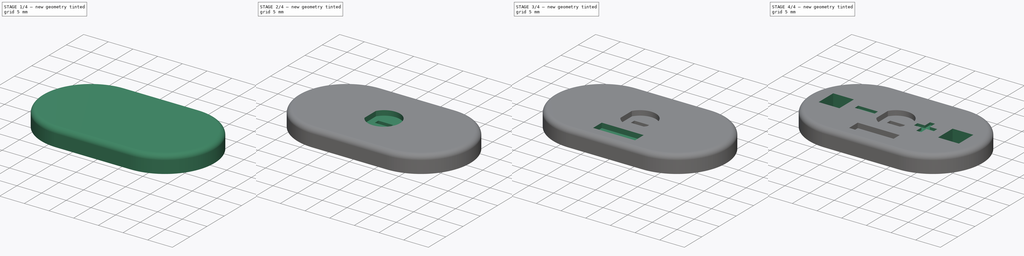
[diagram: build sequence overview — one tinted view per stage of 4, left to right]
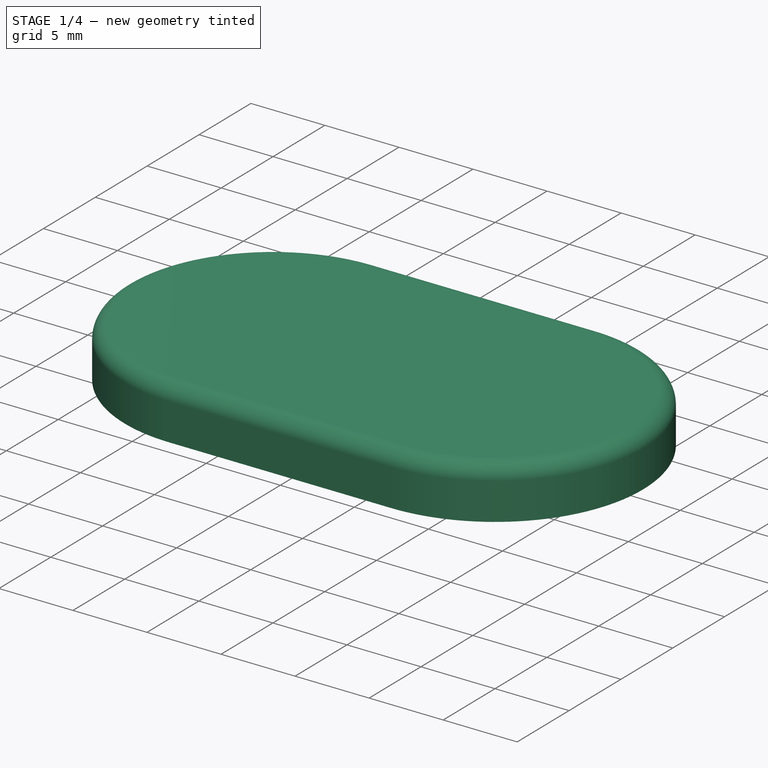
[diagram: stage 1 of 4 — iso view after this stage's code; geometry added in this stage tinted green]
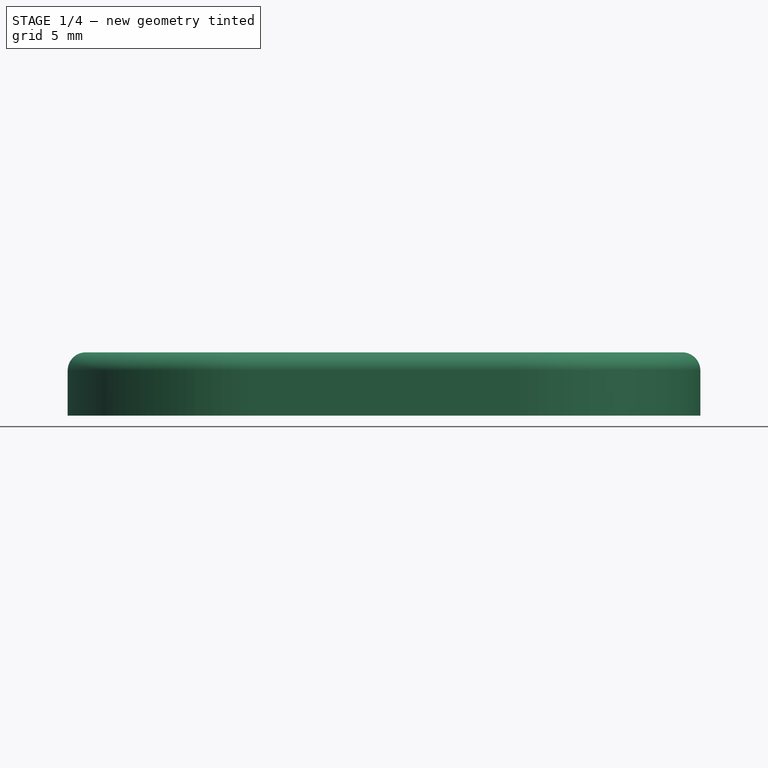
[diagram: stage 1 of 4 — front view after this stage's code; geometry added in this stage tinted green]
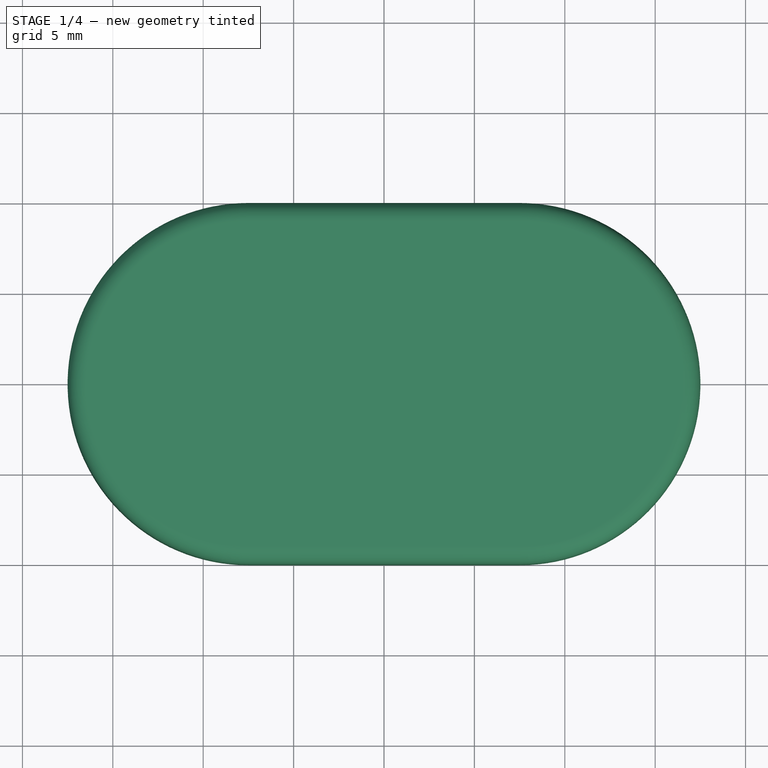
[diagram: stage 1 of 4 — top view after this stage's code; geometry added in this stage tinted green]
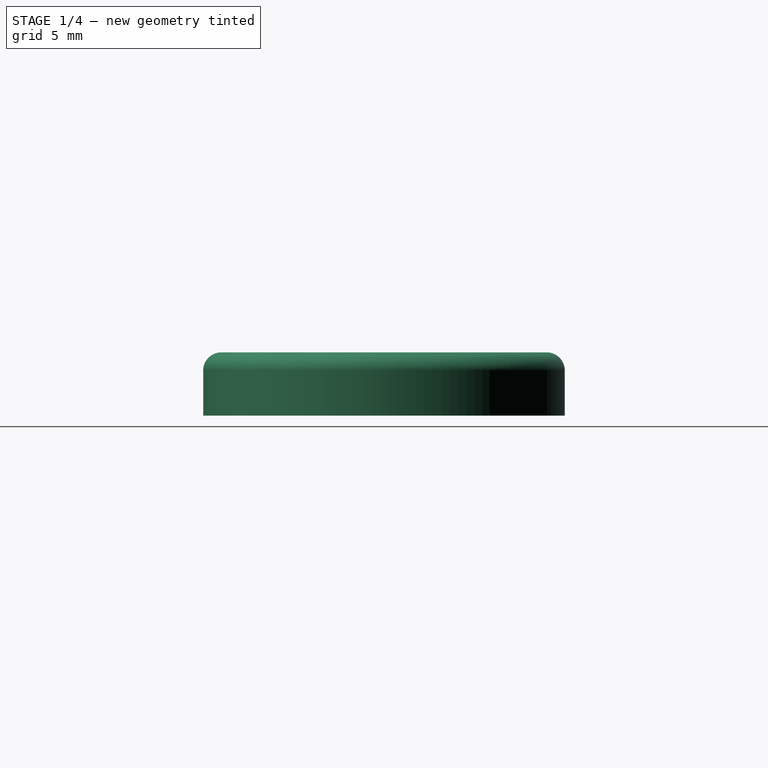
[diagram: stage 1 of 4 — right view after this stage's code; geometry added in this stage tinted green]
FCSTD DOCUMENT  (FreeCAD 0.15R4671 (Git))
Label: led-base-resistor
License: All rights reserved
LicenseURL: http://en.wikipedia.org/wiki/All_rights_reserved
objects: Sketcher::SketchObject×8, PartDesign::Pocket×7, PartDesign::Pad×1, PartDesign::Fillet×1
note: 25 computed .brp shape members not serialized (recipe doc carries the construction recipe); baked Part::Feature solids carry a one-line shape summary decoded from their .brp

FEATURE [Sketcher::SketchObject] Sketch  label="Base"
  sketch-geometry (4):
    g0: ArcOfCircle CenterX=-7.5 CenterY=-1e-12 CenterZ=0 NormalX=0 NormalY=0 NormalZ=1 Radius=10 StartAngle=1.5708 EndAngle=4.71239
    g1: ArcOfCircle CenterX=7.5 CenterY=-1e-12 CenterZ=0 NormalX=0 NormalY=0 NormalZ=1 Radius=10 StartAngle=4.71239 EndAngle=7.85398
    g2: LineSegment StartX=-7.5 StartY=-10 StartZ=0 EndX=7.5 EndY=-10 EndZ=0
    g3: LineSegment StartX=-7.5 StartY=10 StartZ=0 EndX=7.5 EndY=10 EndZ=0
  constraints (9):
    c: Tangent(g0,g3) = 1.5708
    c: Tangent(g0,g2) = -1.5708
    c: Tangent(g2,g1) = -1.5708
    c: Tangent(g3,g1) = 1.5708
    c: Horizontal(g2)
    c: Symmetric(g1,g0,g-2)
    c: DistanceX(g0,g1) = 15
    c: DistanceY(g0,g0) = 20
    c: Symmetric(g0,g0,g-1)
FEATURE [PartDesign::Pad] Pad
  Length = 3.5
  Length2 = 100
  Sketch = -> Sketch
  Type = 0
FEATURE [PartDesign::Fillet] Fillet
  Base = -> Pad [Edge12,Edge7,Edge10,Edge4]
  Radius = 1
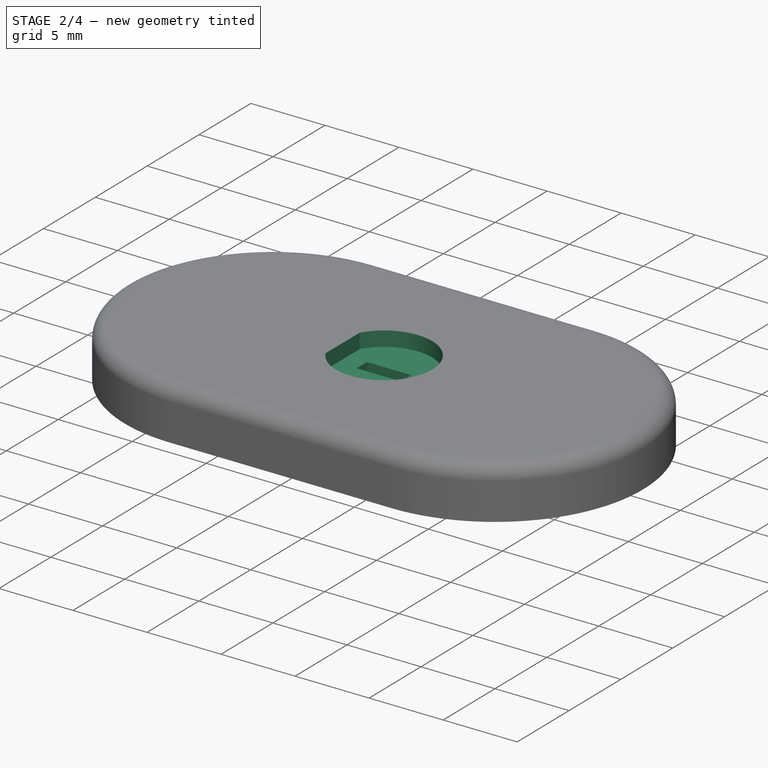
[diagram: stage 2 of 4 — iso view after this stage's code; geometry added in this stage tinted green]
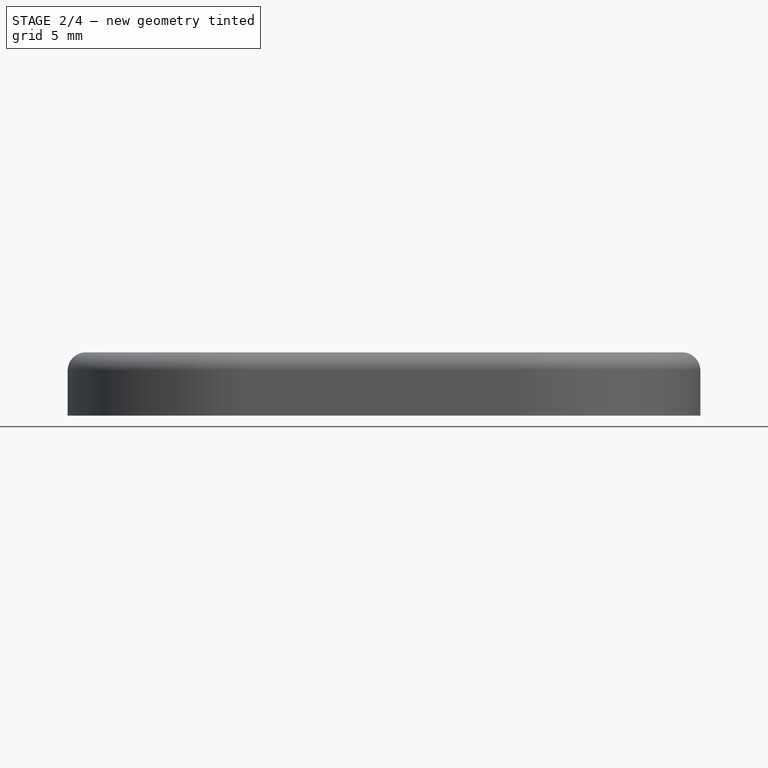
[diagram: stage 2 of 4 — front view after this stage's code; geometry added in this stage tinted green]
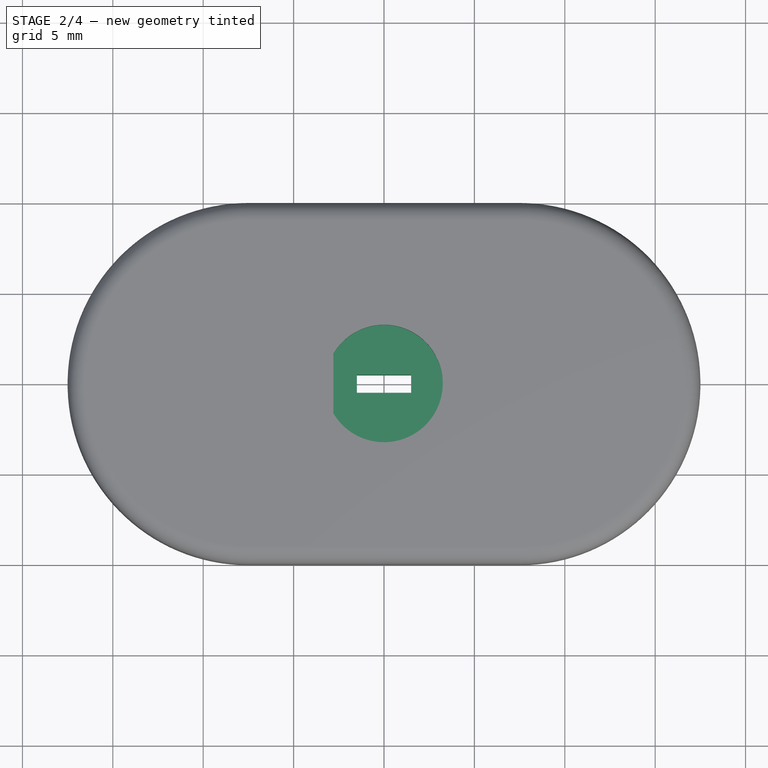
[diagram: stage 2 of 4 — top view after this stage's code; geometry added in this stage tinted green]
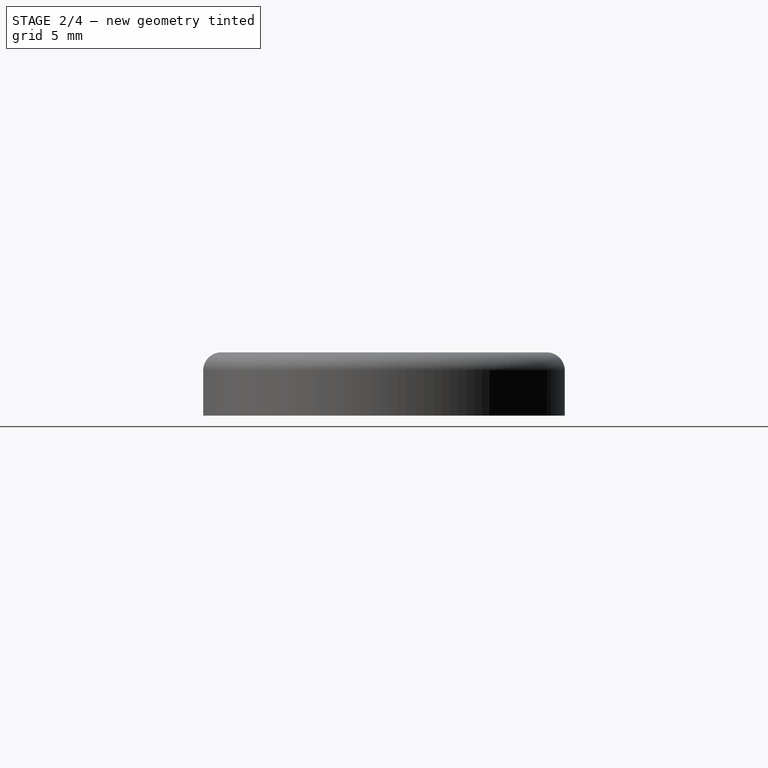
[diagram: stage 2 of 4 — right view after this stage's code; geometry added in this stage tinted green]
FEATURE [Sketcher::SketchObject] Sketch003  label="ledcutout"
  Placement = pos=(0,0,3.5) rot=(0,0,1;0rad)
  Support = -> Fillet [Face9]
  sketch-geometry (2):
    g0: ArcOfCircle CenterX=0 CenterY=0 CenterZ=0 NormalX=0 NormalY=0 NormalZ=1 Radius=3.25 StartAngle=3.6741 EndAngle=8.89227
    g1: LineSegment StartX=-2.8 StartY=1.65 StartZ=0 EndX=-2.8 EndY=-1.65 EndZ=0
  constraints (6):
    c: Coincident(g1,g0)
    c: Coincident(g1,g0)
    c: Radius(g0) = 3.25
    c: Symmetric(g0,g0,g-1)
    c: DistanceY(g0,g0) = -3.3
    c: Coincident(g0,g-1)
FEATURE [PartDesign::Pocket] Pocket
  Length = 1
  Sketch = -> Sketch003
  Type = 0
FEATURE [Sketcher::SketchObject] Sketch007  label="ledwirecutthrough"
  Placement = pos=(0,0,2.5) rot=(0,0,1;0rad)
  Support = -> Pocket [Face13]
  sketch-geometry (4):
    g0: LineSegment StartX=-1.5 StartY=0.5 StartZ=0 EndX=1.5 EndY=0.5 EndZ=0
    g1: LineSegment StartX=1.5 StartY=0.5 StartZ=0 EndX=1.5 EndY=-0.5 EndZ=0
    g2: LineSegment StartX=1.5 StartY=-0.5 StartZ=0 EndX=-1.5 EndY=-0.5 EndZ=0
    g3: LineSegment StartX=-1.5 StartY=-0.5 StartZ=0 EndX=-1.5 EndY=0.5 EndZ=0
  constraints (12):
    c: Coincident(g0,g1)
    c: Coincident(g1,g2)
    c: Coincident(g2,g3)
    c: Coincident(g3,g0)
    c: Horizontal(g0)
    c: Horizontal(g2)
    c: Vertical(g1)
    c: Vertical(g3)
    c: DistanceY(g0,g1) = -1
    c: Symmetric(g0,g1,g-1)
    c: DistanceX(g0,g0) = 3
    c: Symmetric(g0,g0,g-2)
FEATURE [PartDesign::Pocket] Pocket001
  Length = 5
  Sketch = -> Sketch007
  Type = 1
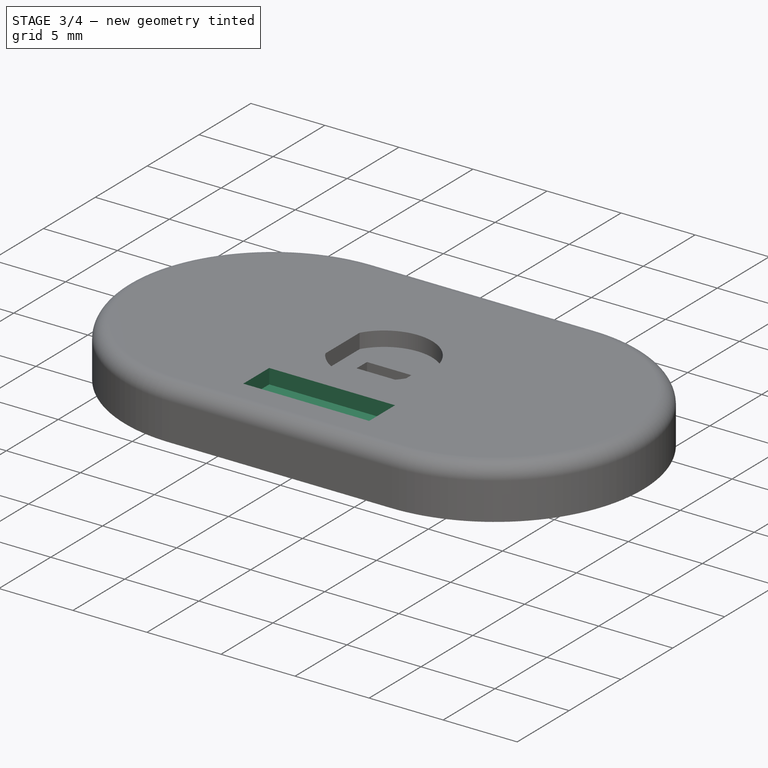
[diagram: stage 3 of 4 — iso view after this stage's code; geometry added in this stage tinted green]
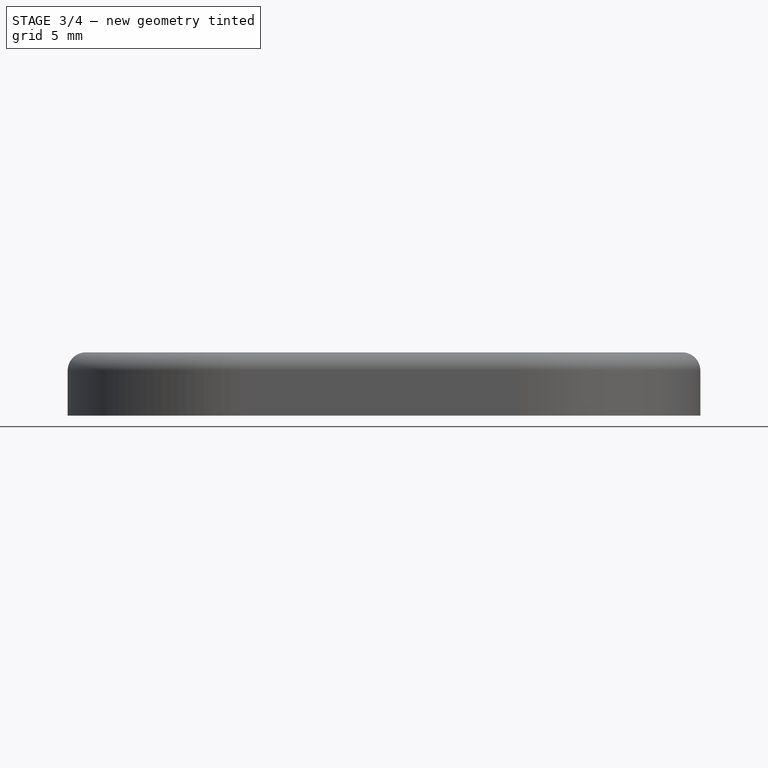
[diagram: stage 3 of 4 — front view after this stage's code; geometry added in this stage tinted green]
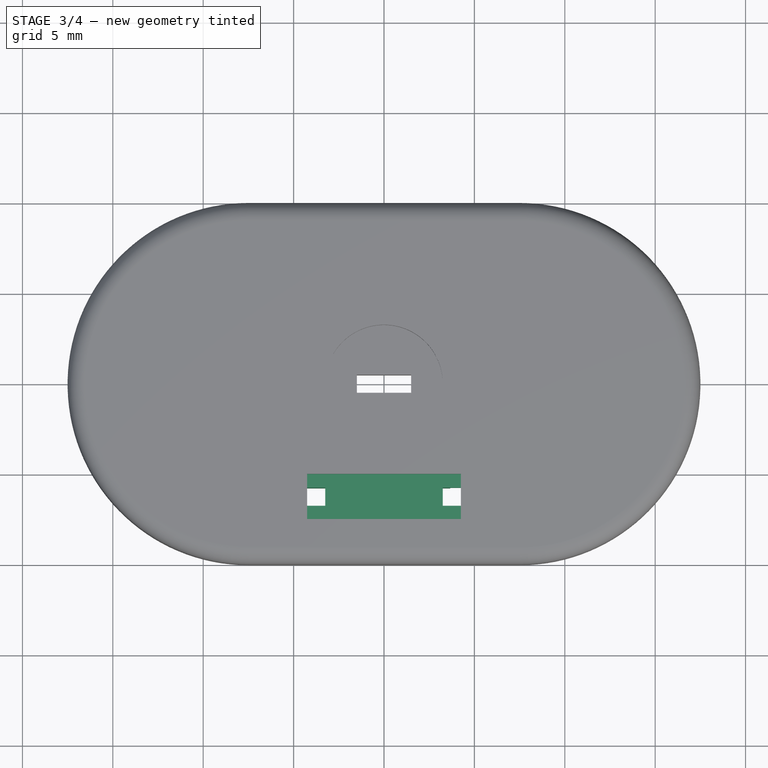
[diagram: stage 3 of 4 — top view after this stage's code; geometry added in this stage tinted green]
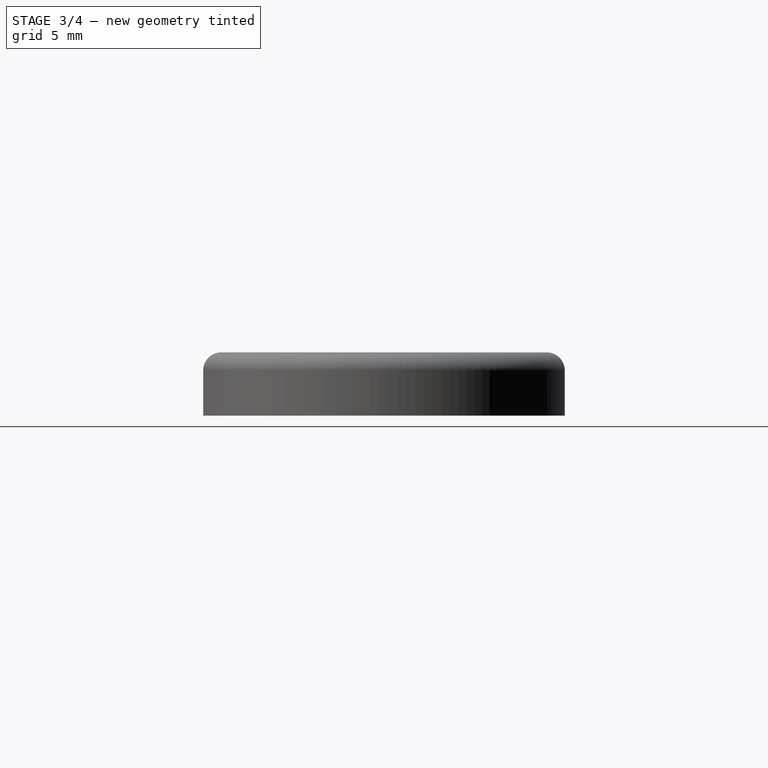
[diagram: stage 3 of 4 — right view after this stage's code; geometry added in this stage tinted green]
FEATURE [Sketcher::SketchObject] Sketch008  label="resistor"
  Placement = pos=(0,0,3.5) rot=(0,0,1;0rad)
  Support = -> Pocket001 [Face9]
  sketch-geometry (4):
    g0: LineSegment StartX=-4.25 StartY=-5 StartZ=0 EndX=4.25 EndY=-5 EndZ=0
    g1: LineSegment StartX=4.25 StartY=-5 StartZ=0 EndX=4.25 EndY=-7.5 EndZ=0
    g2: LineSegment StartX=4.25 StartY=-7.5 StartZ=0 EndX=-4.25 EndY=-7.5 EndZ=0
    g3: LineSegment StartX=-4.25 StartY=-7.5 StartZ=0 EndX=-4.25 EndY=-5 EndZ=0
  constraints (12):
    c: Coincident(g0,g1)
    c: Coincident(g1,g2)
    c: Coincident(g2,g3)
    c: Coincident(g3,g0)
    c: Horizontal(g0)
    c: Horizontal(g2)
    c: Vertical(g1)
    c: Vertical(g3)
    c: DistanceY(g0,g2) = -2.5
    c: Symmetric(g0,g0,g-2)
    c: DistanceX(g0,g0) = -8.5
    c: DistanceY(g-1,g0) = -5
FEATURE [PartDesign::Pocket] Pocket002
  Length = 1
  Sketch = -> Sketch008
  Type = 0
FEATURE [Sketcher::SketchObject] Sketch009  label="resitorholes"
  ExternalGeometry = -> [Pocket002]
  Placement = pos=(0,0,2.5) rot=(0,0,1;0rad)
  Support = -> Pocket002 [Face22]
  sketch-geometry (8):
    g0: LineSegment StartX=-4.25 StartY=-5.75 StartZ=0 EndX=-3.25 EndY=-5.75 EndZ=0
    g1: LineSegment StartX=-3.25 StartY=-5.75 StartZ=0 EndX=-3.25 EndY=-6.75 EndZ=0
    g2: LineSegment StartX=-3.25 StartY=-6.75 StartZ=0 EndX=-4.25 EndY=-6.75 EndZ=0
    g3: LineSegment StartX=-4.25 StartY=-6.75 StartZ=0 EndX=-4.25 EndY=-5.75 EndZ=0
    g4: LineSegment StartX=3.25 StartY=-5.75 StartZ=0 EndX=4.25 EndY=-5.75 EndZ=0
    g5: LineSegment StartX=4.25 StartY=-5.75 StartZ=0 EndX=4.25 EndY=-6.75 EndZ=0
    g6: LineSegment StartX=4.25 StartY=-6.75 StartZ=0 EndX=3.25 EndY=-6.75 EndZ=0
    g7: LineSegment StartX=3.25 StartY=-6.75 StartZ=0 EndX=3.25 EndY=-5.75 EndZ=0
  constraints (23):
    c: Coincident(g0,g1)
    c: Coincident(g1,g2)
    c: Coincident(g2,g3)
    c: Coincident(g3,g0)
    c: Horizontal(g0)
    c: Horizontal(g2)
    c: Vertical(g1)
    c: Vertical(g3)
    c: DistanceX(g0,g0) = 1
    c: DistanceY(g0,g2) = -1
    c: Coincident(g4,g5)
    c: Coincident(g5,g6)
    c: Coincident(g6,g7)
    c: Coincident(g7,g4)
    c: Horizontal(g4)
    c: Horizontal(g6)
    c: Vertical(g5)
    c: Vertical(g7)
    c: Equal(g4,g0)
    c: Equal(g7,g1)
    c: Symmetric(g0,g4,g-2)
    c: DistanceY(g-1,g0) = -5.75
    c: PointOnObject(g0,g-3)
FEATURE [PartDesign::Pocket] Pocket003
  Length = 5
  Sketch = -> Sketch009
  Type = 0
FEATURE [Sketcher::SketchObject] Sketch010  label="bottomwiring"
  Placement = pos=(0,0,0) rot=(1,0,0;3.14159rad)
  Support = -> Pocket003 [Face4]
  sketch-geometry (14):
    g0: LineSegment StartX=3.64324 StartY=5.75 StartZ=0 EndX=11.6966 EndY=-0.397441 EndZ=0
    g1: LineSegment StartX=11.6966 StartY=-0.397441 StartZ=0 EndX=12.3034 EndY=0.397441 EndZ=0
    g2: LineSegment StartX=12.3034 StartY=0.397441 StartZ=0 EndX=4.25 EndY=6.54488 EndZ=0
    g3: LineSegment StartX=4.25 StartY=6.54488 StartZ=0 EndX=3.64324 EndY=5.75 EndZ=0
    g4: LineSegment StartX=-1.5 StartY=0.5 StartZ=0 EndX=-12 EndY=0.5 EndZ=0
    g5: LineSegment StartX=-12 StartY=0.5 StartZ=0 EndX=-12 EndY=-0.5 EndZ=0
    g6: LineSegment StartX=-12 StartY=-0.5 StartZ=0 EndX=-1.5 EndY=-0.5 EndZ=0
    g7: LineSegment StartX=-1.5 StartY=-0.5 StartZ=0 EndX=-1.5 EndY=0.5 EndZ=0
    g8: LineSegment StartX=-3.25 StartY=5.75 StartZ=0 EndX=0 EndY=5.75 EndZ=0
    g9: LineSegment StartX=0 StartY=5.75 StartZ=0 EndX=0 EndY=0.5 EndZ=0
    g10: LineSegment StartX=0 StartY=0.5 StartZ=0 EndX=1.5 EndY=0.5 EndZ=0
    g11: LineSegment StartX=1.5 StartY=0.5 StartZ=0 EndX=1.5 EndY=6.75 EndZ=0
    g12: LineSegment StartX=1.5 StartY=6.75 StartZ=0 EndX=-3.25 EndY=6.75 EndZ=0
    g13: LineSegment StartX=-3.25 StartY=6.75 StartZ=0 EndX=-3.25 EndY=5.75 EndZ=0
FEATURE [PartDesign::Pocket] Pocket004
  Length = 1.5
  Sketch = -> Sketch010
  Type = 0
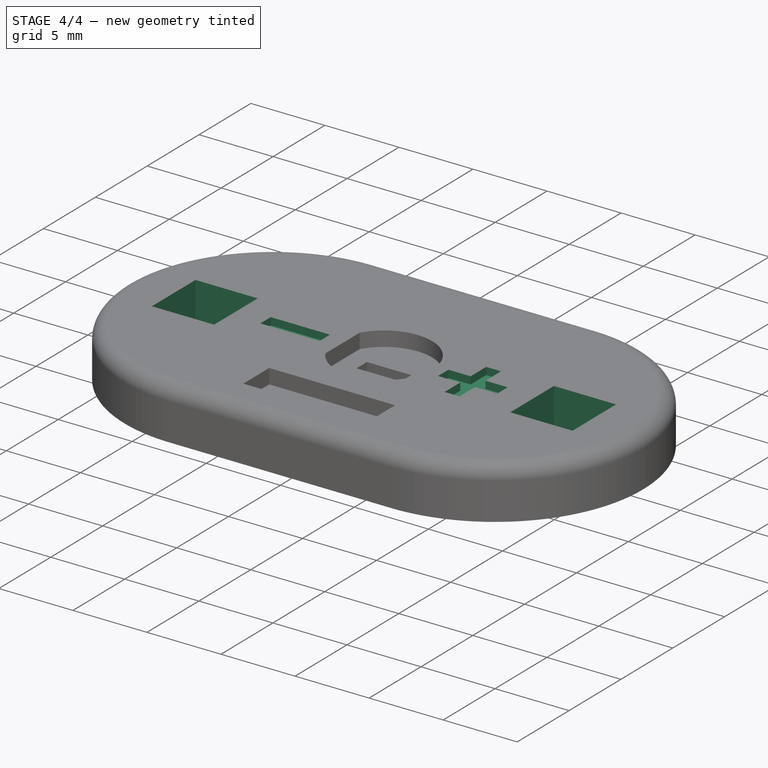
[diagram: stage 4 of 4 — iso view after this stage's code; geometry added in this stage tinted green]
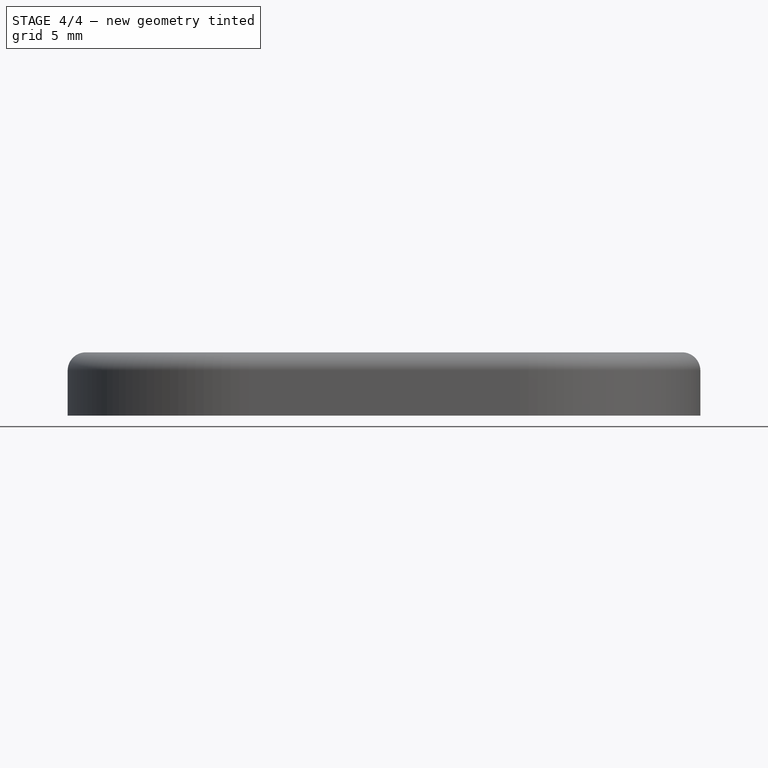
[diagram: stage 4 of 4 — front view after this stage's code; geometry added in this stage tinted green]
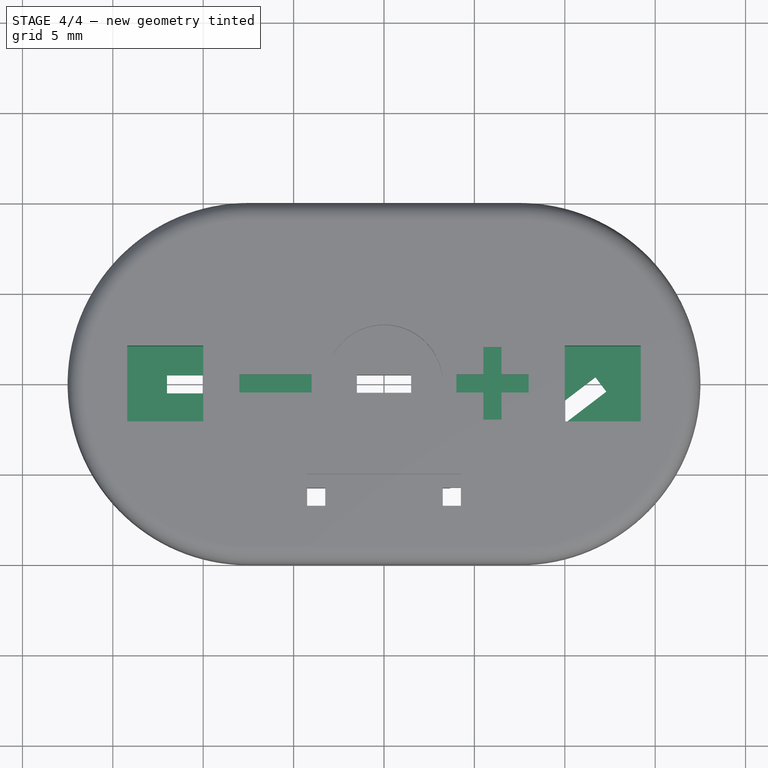
[diagram: stage 4 of 4 — top view after this stage's code; geometry added in this stage tinted green]
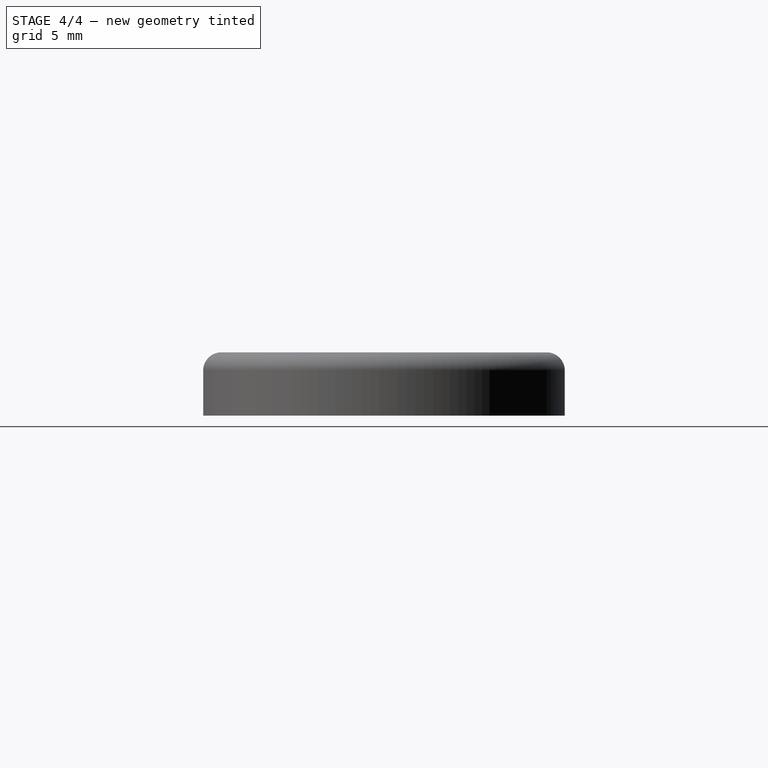
[diagram: stage 4 of 4 — right view after this stage's code; geometry added in this stage tinted green]
FEATURE [Sketcher::SketchObject] Sketch001  label="magnethole"
  Placement = pos=(0,0,3.5) rot=(0,0,1;0rad)
  Support = -> Pocket004 [Face9]
  sketch-geometry (10):
    g0: Circle [constr] CenterX=-12 CenterY=0 CenterZ=0 NormalX=0 NormalY=0 NormalZ=1 Radius=2
    g1: Circle [constr] CenterX=12 CenterY=0 CenterZ=0 NormalX=0 NormalY=0 NormalZ=1 Radius=2
    g2: LineSegment StartX=-14.2 StartY=2.1 StartZ=0 EndX=-10 EndY=2.1 EndZ=0
    g3: LineSegment StartX=-10 StartY=2.1 StartZ=0 EndX=-10 EndY=-2.1 EndZ=0
    g4: LineSegment StartX=-10 StartY=-2.1 StartZ=0 EndX=-14.2 EndY=-2.1 EndZ=0
    g5: LineSegment StartX=-14.2 StartY=-2.1 StartZ=0 EndX=-14.2 EndY=2.1 EndZ=0
    g6: LineSegment StartX=10 StartY=2.1 StartZ=0 EndX=14.2 EndY=2.1 EndZ=0
    g7: LineSegment StartX=14.2 StartY=2.1 StartZ=0 EndX=14.2 EndY=-2.1 EndZ=0
    g8: LineSegment StartX=14.2 StartY=-2.1 StartZ=0 EndX=10 EndY=-2.1 EndZ=0
    g9: LineSegment StartX=10 StartY=-2.1 StartZ=0 EndX=10 EndY=2.1 EndZ=0
  constraints (29):
    c: PointOnObject(g0,g-1)
    c: Radius(g0) = 2
    c: DistanceX(g-1,g0) = -12
    c: PointOnObject(g1,g-1)
    c: Equal(g1,g0)
    c: Symmetric(g1,g0,g-2)
    c: Coincident(g2,g3)
    c: Coincident(g3,g4)
    c: Coincident(g4,g5)
    c: Coincident(g5,g2)
    c: Horizontal(g2)
    c: Horizontal(g4)
    c: Vertical(g3)
    c: Vertical(g5)
    c: Symmetric(g2,g4,g-1)
    c: DistanceX(g3,g4) = -4.2
    c: DistanceY(g2,g4) = -4.2
    c: DistanceX(g-1,g3) = -10
    c: Coincident(g6,g7)
    c: Coincident(g7,g8)
    c: Coincident(g8,g9)
    c: Coincident(g9,g6)
    c: Horizontal(g6)
    c: Horizontal(g8)
    c: Vertical(g7)
    c: Vertical(g9)
    c: Symmetric(g3,g8,g-2)
    c: Equal(g6,g2)
    c: Equal(g7,g3)
FEATURE [PartDesign::Pocket] Pocket005
  Length = 3
  Sketch = -> Sketch001
  Type = 0
FEATURE [Sketcher::SketchObject] Sketch006  label="polarity"
  Placement = pos=(0,0,3.5) rot=(0,0,1;0rad)
  Support = -> Pocket005 [Face9]
  sketch-geometry (16):
    g0: LineSegment StartX=-8 StartY=0.5 StartZ=0 EndX=-4 EndY=0.5 EndZ=0
    g1: LineSegment StartX=-4 StartY=0.5 StartZ=0 EndX=-4 EndY=-0.5 EndZ=0
    g2: LineSegment StartX=-4 StartY=-0.5 StartZ=0 EndX=-8 EndY=-0.5 EndZ=0
    g3: LineSegment StartX=-8 StartY=-0.5 StartZ=0 EndX=-8 EndY=0.5 EndZ=0
    g4: LineSegment StartX=4 StartY=0.5 StartZ=0 EndX=5.5 EndY=0.5 EndZ=0
    g5: LineSegment StartX=8 StartY=0.5 StartZ=0 EndX=8 EndY=-0.5 EndZ=0
    g6: LineSegment StartX=8 StartY=-0.5 StartZ=0 EndX=6.5 EndY=-0.5 EndZ=0
    g7: LineSegment StartX=4 StartY=-0.5 StartZ=0 EndX=4 EndY=0.5 EndZ=0
    g8: LineSegment StartX=5.5 StartY=2 StartZ=0 EndX=6.5 EndY=2 EndZ=0
    g9: LineSegment StartX=6.5 StartY=2 StartZ=0 EndX=6.5 EndY=0.5 EndZ=0
    g10: LineSegment StartX=6.5 StartY=-2 StartZ=0 EndX=5.5 EndY=-2 EndZ=0
    g11: LineSegment StartX=5.5 StartY=-2 StartZ=0 EndX=5.5 EndY=-0.5 EndZ=0
    g12: LineSegment StartX=6.5 StartY=0.5 StartZ=0 EndX=8 EndY=0.5 EndZ=0
    g13: LineSegment StartX=6.5 StartY=-0.5 StartZ=0 EndX=6.5 EndY=-2 EndZ=0
    g14: LineSegment StartX=5.5 StartY=-0.5 StartZ=0 EndX=4 EndY=-0.5 EndZ=0
    g15: LineSegment StartX=5.5 StartY=0.5 StartZ=0 EndX=5.5 EndY=2 EndZ=0
  constraints (43):
    c: Coincident(g0,g1)
    c: Coincident(g1,g2)
    c: Coincident(g2,g3)
    c: Coincident(g3,g0)
    c: Horizontal(g0)
    c: Horizontal(g2)
    c: Vertical(g1)
    c: Vertical(g3)
    c: Symmetric(g0,g2,g-1)
    c: DistanceX(g0,g0) = -4
    c: DistanceY(g0,g1) = -1
    c: DistanceX(g-1,g0) = -4
    c: Coincident(g12,g5)
    c: Coincident(g5,g6)
    c: Coincident(g14,g7)
    c: Coincident(g7,g4)
    c: Horizontal(g4)
    c: Horizontal(g6)
    c: Vertical(g5)
    c: Vertical(g7)
    c: Symmetric(g4,g0,g-2)
    c: DistanceX(g4,g12) = 4
    c: DistanceY(g12,g5) = -1
    c: Coincident(g8,g9)
    c: Coincident(g13,g10)
    c: Coincident(g10,g11)
    c: Coincident(g15,g8)
    c: Horizontal(g8)
    c: Horizontal(g10)
    c: Vertical(g9)
    c: Vertical(g11)
    c: DistanceX(g8,g8) = 1
    c: Symmetric(g8,g10,g-1)
    c: DistanceY(g8,g10) = -4
    c: DistanceX(g8,g4) = -1.5
    c: Tangent(g4,g12)
    c: Coincident(g9,g12)
    c: Tangent(g9,g13)
    c: Coincident(g6,g13)
    c: Tangent(g6,g14)
    c: Coincident(g11,g14)
    c: Coincident(g15,g4)
    c: Tangent(g11,g15)
FEATURE [PartDesign::Pocket] Pocket006
  Length = 0.5
  Sketch = -> Sketch006
  Type = 0
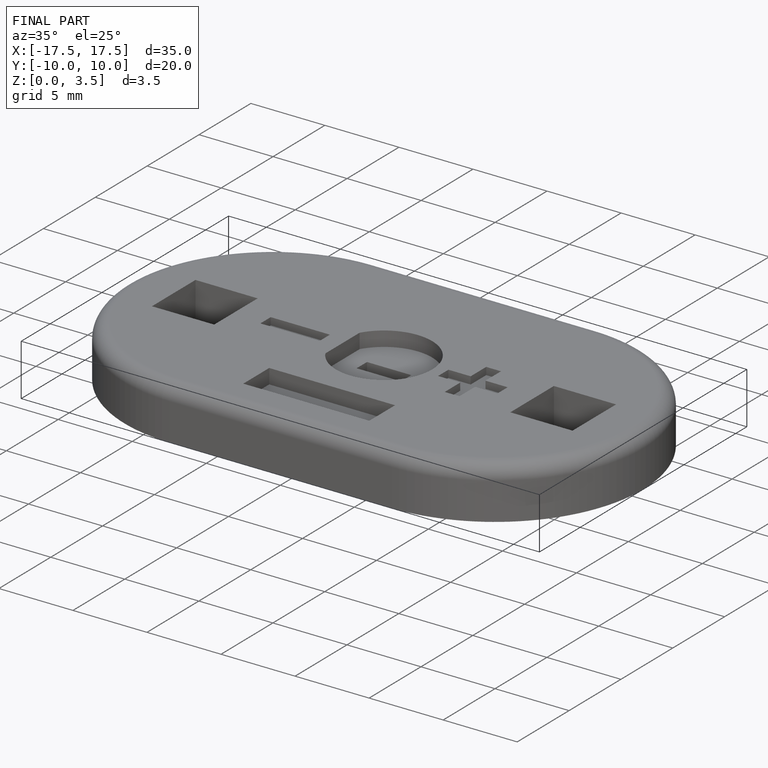
[diagram: finished part — iso view with bounding-box wireframe]
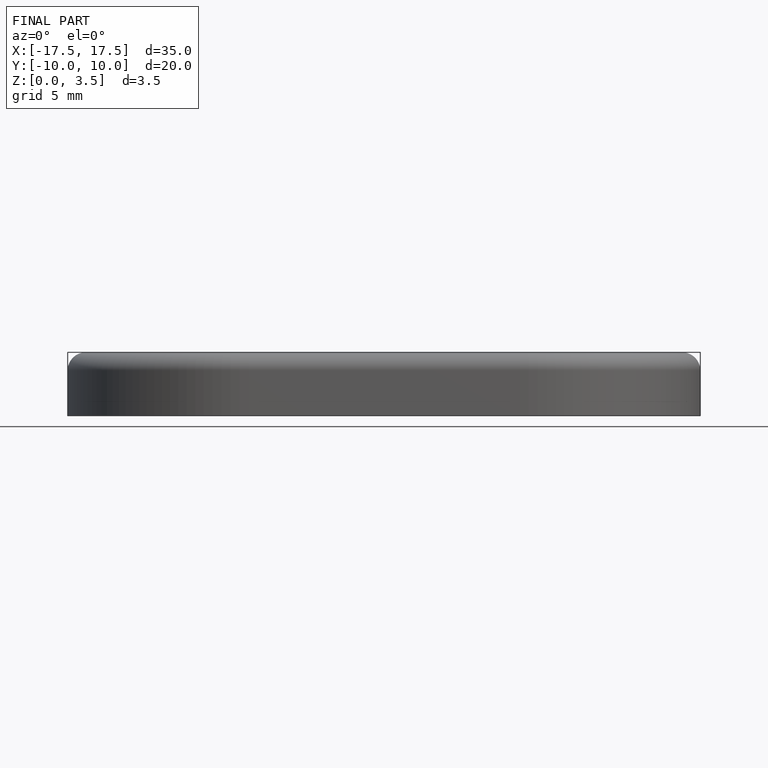
[diagram: finished part — front view with bounding-box wireframe]
